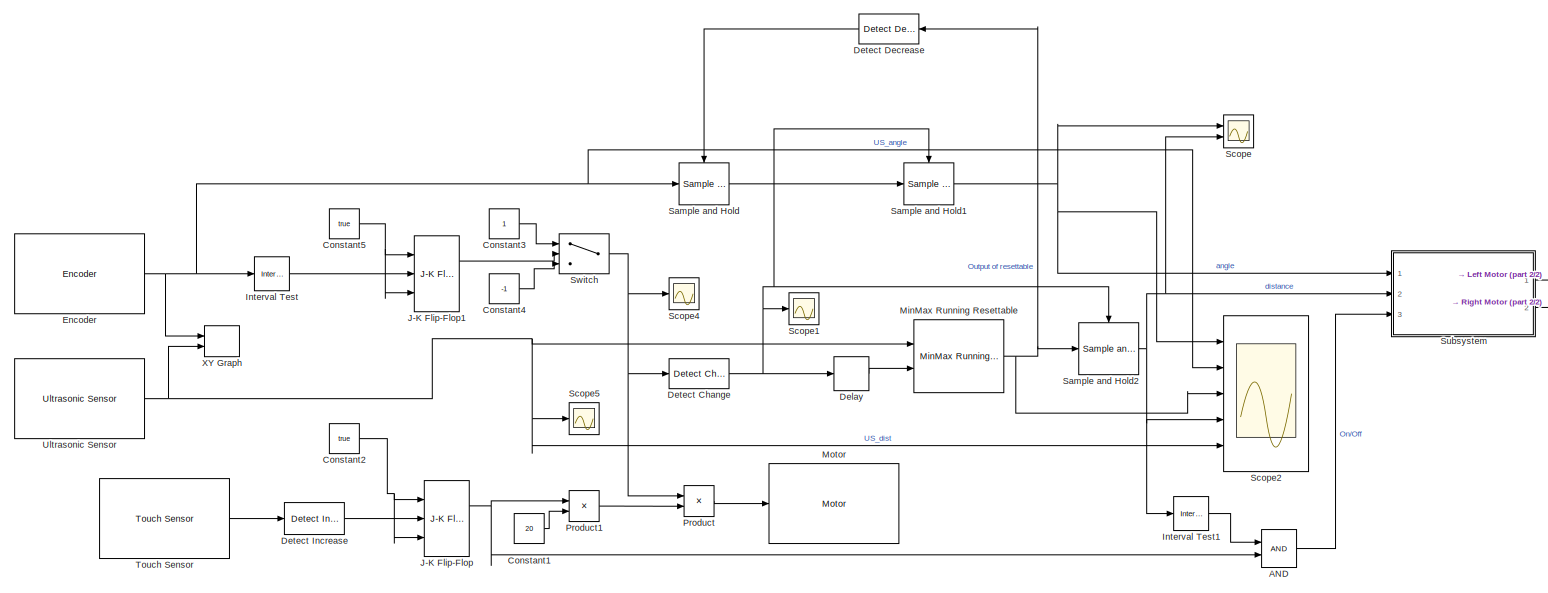
[diagram: root canvas - part 1/2, most of the canvas]
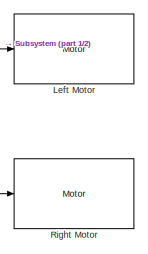
[diagram: root canvas - part 2/2, middle right region]
MODEL slx_2339d71c7e31
KIND model
CONFIG AbsTol = auto
CONFIG EnableMultiTasking = on
CONFIG FixedStep = auto
CONFIG MaxStep = auto
CONFIG MinStep = auto
CONFIG RelTol = 1e-3
CONFIG SampleTimeConstraint = Unconstrained
CONFIG SolverName = FixedStepAuto
CONFIG StartTime = 0.0
CONFIG StopTime = 60
BLOCK [Logic] AND
  AllPortsSameDT = off
  IconShape = distinctive
  OutDataTypeStr = boolean
  Ports = [2, 1]
BLOCK [Constant] Constant1
  Value = 20
BLOCK [Constant] Constant2
  OutDataTypeStr = boolean
  Value = true
BLOCK [Constant] Constant3
BLOCK [Constant] Constant4
  Value = -1
BLOCK [Constant] Constant5
  OutDataTypeStr = boolean
  Value = true
BLOCK [Delay] Delay
  DelayLength = 1
  InputPortMap = u0
  Ports = [1, 1]
BLOCK [Reference] Detect Change  REF=simulink/Logic and Bit
Operations/Detect
Change
  Ports = [1, 1]
  SourceBlock = simulink/Logic and Bit\nOperations/Detect\nChange
  SourceProductBaseCode = SL
  SourceType = Detect Change
BLOCK [Reference] Detect Decrease  REF=simulink/Logic and Bit
Operations/Detect
Decrease
  Ports = [1, 1]
  SourceBlock = simulink/Logic and Bit\nOperations/Detect\nDecrease
  SourceProductBaseCode = SL
  SourceType = Detect Decrease
BLOCK [Reference] Detect Increase  REF=simulink/Logic and Bit
Operations/Detect
Increase
  Ports = [1, 1]
  SourceBlock = simulink/Logic and Bit\nOperations/Detect\nIncrease
  SourceProductBaseCode = SL
  SourceType = Detect Increase
BLOCK [Reference] Encoder  REF=legoev3lib/Encoder
  Ports = [1, 1]
  SourceBlock = legoev3lib/Encoder
  SourceProductBaseCode = LEGOEV3
  SourceType = LEGO MINDSTORMS EV3 Encoder
BLOCK [Reference] Interval Test  REF=simulink/Logic and Bit
Operations/Interval Test
  Ports = [1, 1]
  SourceBlock = simulink/Logic and Bit\nOperations/Interval Test
  SourceProductBaseCode = SL
  SourceType = Interval Test
BLOCK [Reference] Interval Test1  REF=simulink/Logic and Bit
Operations/Interval Test
  Ports = [1, 1]
  SourceBlock = simulink/Logic and Bit\nOperations/Interval Test
  SourceProductBaseCode = SL
  SourceType = Interval Test
BLOCK [Reference] J-K Flip-Flop  REF=simulink_extras/Flip Flops/J-K
Flip-Flop
  Ports = [3, 2]
  SourceBlock = simulink_extras/Flip Flops/J-K\nFlip-Flop
  SourceProductBaseCode = SL
  SourceType = JKFlipFlop
BLOCK [Reference] J-K Flip-Flop1  REF=simulink_extras/Flip Flops/J-K
Flip-Flop
  Ports = [3, 2]
  SourceBlock = simulink_extras/Flip Flops/J-K\nFlip-Flop
  SourceProductBaseCode = SL
  SourceType = JKFlipFlop
BLOCK [Reference] Left Motor  REF=legoev3lib/Motor
  Ports = [1]
  SourceBlock = legoev3lib/Motor
  SourceProductBaseCode = LEGOEV3
  SourceType = LEGO MINDSTORMS EV3 Motor
BLOCK [Reference] MinMax Running Resettable  REF=simulink/Math
Operations/MinMax
Running
Resettable
  Ports = [2, 1]
  SourceBlock = simulink/Math\nOperations/MinMax\nRunning\nResettable
  SourceProductBaseCode = SL
  SourceType = MinMax Running Resettable
BLOCK [Reference] Motor  REF=legoev3lib/Motor
  Ports = [1]
  SourceBlock = legoev3lib/Motor
  SourceProductBaseCode = LEGOEV3
  SourceType = LEGO MINDSTORMS EV3 Motor
BLOCK [Product] Product
  Ports = [2, 1]
BLOCK [Product] Product1
  Ports = [2, 1]
BLOCK [Reference] Right Motor  REF=legoev3lib/Motor
  Ports = [1]
  SourceBlock = legoev3lib/Motor
  SourceProductBaseCode = LEGOEV3
  SourceType = LEGO MINDSTORMS EV3 Motor
BLOCK [Reference] Sample and Hold  REF=dspsigops/Sample
and Hold
  Ports = [1, 1, 0, 1]
  SourceBlock = dspsigops/Sample\nand Hold
  SourceProductBaseCode = DS
  SourceType = Sample and Hold
BLOCK [Reference] Sample and Hold1  REF=dspsigops/Sample
and Hold
  Ports = [1, 1, 0, 1]
  SourceBlock = dspsigops/Sample\nand Hold
  SourceProductBaseCode = DS
  SourceType = Sample and Hold
BLOCK [Reference] Sample and Hold2  REF=dspsigops/Sample
and Hold
  Ports = [1, 1, 0, 1]
  SourceBlock = dspsigops/Sample\nand Hold
  SourceProductBaseCode = DS
  SourceType = Sample and Hold
BLOCK [Scope] Scope
  Floating = off
  NumInputPorts = 2
  Ports = [2]
  ScopeSpecificationString = Simulink.scopes.TimeScopeBlockCfg('CurrentConfiguration', extmgr.ConfigurationSet(extmgr.Configuration('Core','General UI',true),extmgr.Configuration('Core','Source UI',true),extmgr.Configuration('Sources','WiredSimulink',true,'DataLoggingVariableName','ScopeData1'),extmgr.Configuration('Visuals','Time Domain',true),extmgr.Configuration('Tools','Plot Navigation',true),extmgr.Configuration('Tools',...<+40ch>
BLOCK [Scope] Scope1
  Floating = off
  NumInputPorts = 1
  Ports = [1]
  ScopeSpecificationString = Simulink.scopes.TimeScopeBlockCfg('CurrentConfiguration', extmgr.ConfigurationSet(extmgr.Configuration('Core','General UI',true),extmgr.Configuration('Core','Source UI',true),extmgr.Configuration('Sources','WiredSimulink',true,'DataLoggingVariableName','ScopeData1'),extmgr.Configuration('Visuals','Time Domain',true,'SerializedDisplays',{struct('MinYLimReal','-0.125','MaxYLimReal','1.125','YLabelRe...<+1409ch>
BLOCK [Scope] Scope2
  Floating = off
  NumInputPorts = 5
  Ports = [5]
  ScopeSpecificationString = Simulink.scopes.TimeScopeBlockCfg('CurrentConfiguration', extmgr.ConfigurationSet(extmgr.Configuration('Core','General UI',true),extmgr.Configuration('Core','Source UI',true),extmgr.Configuration('Sources','WiredSimulink',true,'DataLoggingVariableName','ScopeData2'),extmgr.Configuration('Visuals','Time Domain',true,'SerializedDisplays',{struct('MinYLimReal','-106.125','MaxYLimReal','295.125','YLab...<+1444ch>
BLOCK [Scope] Scope4
  Floating = off
  NumInputPorts = 1
  Ports = [1]
  ScopeSpecificationString = Simulink.scopes.TimeScopeBlockCfg('CurrentConfiguration', extmgr.ConfigurationSet(extmgr.Configuration('Core','General UI',true),extmgr.Configuration('Core','Source UI',true),extmgr.Configuration('Sources','WiredSimulink',true,'DataLoggingVariableName','ScopeData4'),extmgr.Configuration('Visuals','Time Domain',true,'SerializedDisplays',{struct('MinYLimReal','-1.22028','MaxYLimReal','1.25','YLabelR...<+1402ch>
BLOCK [Scope] Scope5
  Floating = off
  NumInputPorts = 1
  Ports = [1]
  ScopeSpecificationString = Simulink.scopes.TimeScopeBlockCfg('CurrentConfiguration', extmgr.ConfigurationSet(extmgr.Configuration('Core','General UI',true),extmgr.Configuration('Core','Source UI',true),extmgr.Configuration('Sources','WiredSimulink',true,'DataLoggingVariableName','ScopeData4'),extmgr.Configuration('Visuals','Time Domain',true,'SerializedDisplays',{struct('MinYLimReal','-10.375','MaxYLimReal','163.375','YLabe...<+1413ch>
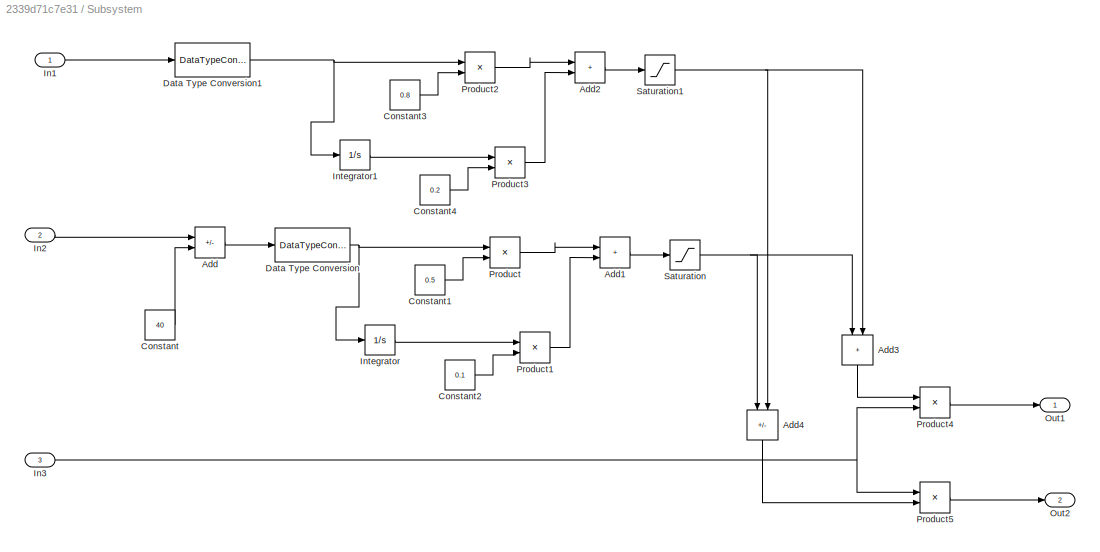
BLOCK [SubSystem] Subsystem
  Ports = [3, 2]
  RequestExecContextInheritance = off
BLOCK [Sum] Subsystem/Add
  IconShape = rectangular
  Inputs = +-
  Ports = [2, 1]
BLOCK [Sum] Subsystem/Add1
  IconShape = rectangular
  Ports = [2, 1]
BLOCK [Sum] Subsystem/Add2
  IconShape = rectangular
  Ports = [2, 1]
BLOCK [Sum] Subsystem/Add3
  IconShape = rectangular
  NameLocation = left
  Ports = [2, 1]
BLOCK [Sum] Subsystem/Add4
  IconShape = rectangular
  Inputs = +-
  NameLocation = left
  Ports = [2, 1]
BLOCK [Constant] Subsystem/Constant
  Value = 40
BLOCK [Constant] Subsystem/Constant1
  Value = 0.5
BLOCK [Constant] Subsystem/Constant2
  Value = 0.1
BLOCK [Constant] Subsystem/Constant3
  Value = 0.8
BLOCK [Constant] Subsystem/Constant4
  Value = 0.2
BLOCK [DataTypeConversion] Subsystem/Data Type Conversion
  OutDataTypeStr = double
  RndMeth = Floor
  SaturateOnIntegerOverflow = off
BLOCK [DataTypeConversion] Subsystem/Data Type Conversion1
  OutDataTypeStr = double
  RndMeth = Floor
  SaturateOnIntegerOverflow = off
BLOCK [Inport] Subsystem/In1
BLOCK [Inport] Subsystem/In2
  Port = 2
BLOCK [Inport] Subsystem/In3
  Port = 3
BLOCK [Integrator] Subsystem/Integrator
  Ports = [1, 1]
BLOCK [Integrator] Subsystem/Integrator1
  Ports = [1, 1]
BLOCK [Outport] Subsystem/Out1
BLOCK [Outport] Subsystem/Out2
  Port = 2
BLOCK [Product] Subsystem/Product
  Ports = [2, 1]
BLOCK [Product] Subsystem/Product1
  Ports = [2, 1]
BLOCK [Product] Subsystem/Product2
  Ports = [2, 1]
BLOCK [Product] Subsystem/Product3
  Ports = [2, 1]
BLOCK [Product] Subsystem/Product4
  Ports = [2, 1]
BLOCK [Product] Subsystem/Product5
  Ports = [2, 1]
BLOCK [Saturate] Subsystem/Saturation
  LowerLimit = -50
  UpperLimit = 50
BLOCK [Saturate] Subsystem/Saturation1
  LowerLimit = -50
  UpperLimit = 50
BLOCK [Switch] Switch
  Criteria = u2 > Threshold
  InputSameDT = off
  SaturateOnIntegerOverflow = off
BLOCK [Reference] Touch Sensor  REF=legoev3lib/Touch Sensor
  Ports = [0, 1]
  SourceBlock = legoev3lib/Touch Sensor
  SourceProductBaseCode = LEGOEV3
  SourceType = LEGO MINDSTORMS EV3 Touch Sensor
BLOCK [Reference] Ultrasonic Sensor  REF=legoev3lib/Ultrasonic Sensor
  Ports = [0, 1]
  SourceBlock = legoev3lib/Ultrasonic Sensor
  SourceProductBaseCode = LEGOEV3
  SourceType = LEGO MINDSTORMS EV3 Ultrasonic Sensor
BLOCK [Record] XY Graph
  CompatibilityTag = XY
  FileSettingsInternal = {"entries":[{"content":{"excelSettings":{"content":{},"type":"Streamout.ExcelSettings"}},"type":"Streamout.FileSettingStorage","uuid":"50f50f7a-dfcd-414a-8b4a-e8b5aee4ef2a"}],"packageUris":["http://schema.mathworks.com/mf0/streamout_blocks/R2020a"],"version":"1.0"}
  Layout = [1 1]
  Ports = [2]
  SignalsInternal = {"entries":[{"content":{"signals":[{"content":{"blockPath":["exercise_33/XY Graph"],"channel":[],"dimensions":[1],"domain":"exercise_33/XY Graph","lineColor":"#a2142f","plots":[1],"port":1,"sid":[],"signalID":9,"signalName":"US_angle"},"type":"RecordBlkView.Signal","uuid":"c8cc9e7f-7cd9-489e-ba8d-e3bfc22c7bb4"},{"content":{"blockPath":["exercise_33/XY Graph"],"channel":[],"dimensions":[1],"domain"...<+367ch>
  VisualizationBindings = {"xyplotplugin":{"info":[{"series":[{"bindingParametersList":[{"parameter":"X-Axis","signalID":9,"signalName":"US_angle"},{"parameter":"Y-Axis","signalID":12,"signalName":"US_dist"}],"seriesID":57766}],"subplotID":1}]}}
LINE AND:1 -> Subsystem:3
LINE Constant1:1 -> Product1:2
NET Constant2:1 -> J-K Flip-Flop:1, J-K Flip-Flop:3
LINE Constant3:1 -> Switch:1
LINE Constant4:1 -> Switch:3
NET Constant5:1 -> J-K Flip-Flop1:1, J-K Flip-Flop1:3
LINE Delay:1 -> MinMax Running Resettable:2
NET Detect Change:1 -> Delay:1, Sample and Hold1:trigger, Sample and Hold2:trigger, Scope1:1
LINE Detect Decrease:1 -> Sample and Hold:trigger
LINE Detect Increase:1 -> J-K Flip-Flop:2
NET Encoder:1 -> Interval Test:1, Sample and Hold:1, Scope2:2, XY Graph:1
LINE Interval Test1:1 -> AND:1
LINE Interval Test:1 -> J-K Flip-Flop1:2
LINE J-K Flip-Flop1:1 -> Switch:2
NET J-K Flip-Flop:1 -> AND:2, Product1:1
NET MinMax Running Resettable:1 -> Detect Decrease:1, Sample and Hold2:1, Scope2:3
LINE Product1:1 -> Product:2
LINE Product:1 -> Motor:1
NET Sample and Hold1:1 -> Scope2:1, Scope:1, Subsystem:1
NET Sample and Hold2:1 -> Interval Test1:1, Scope2:4, Scope:2, Subsystem:2
LINE Sample and Hold:1 -> Sample and Hold1:1
LINE Subsystem/Add1:1 -> Subsystem/Saturation:1
LINE Subsystem/Add2:1 -> Subsystem/Saturation1:1
LINE Subsystem/Add3:1 -> Subsystem/Product4:1
LINE Subsystem/Add4:1 -> Subsystem/Product5:2
LINE Subsystem/Add:1 -> Subsystem/Data Type Conversion:1
LINE Subsystem/Constant1:1 -> Subsystem/Product:2
LINE Subsystem/Constant2:1 -> Subsystem/Product1:2
LINE Subsystem/Constant3:1 -> Subsystem/Product2:2
LINE Subsystem/Constant4:1 -> Subsystem/Product3:2
LINE Subsystem/Constant:1 -> Subsystem/Add:2
NET Subsystem/Data Type Conversion1:1 -> Subsystem/Integrator1:1, Subsystem/Product2:1
NET Subsystem/Data Type Conversion:1 -> Subsystem/Integrator:1, Subsystem/Product:1
LINE Subsystem/In1:1 -> Subsystem/Data Type Conversion1:1
LINE Subsystem/In2:1 -> Subsystem/Add:1
NET Subsystem/In3:1 -> Subsystem/Product4:2, Subsystem/Product5:1
LINE Subsystem/Integrator1:1 -> Subsystem/Product3:1
LINE Subsystem/Integrator:1 -> Subsystem/Product1:1
LINE Subsystem/Product1:1 -> Subsystem/Add1:2
LINE Subsystem/Product2:1 -> Subsystem/Add2:1
LINE Subsystem/Product3:1 -> Subsystem/Add2:2
LINE Subsystem/Product4:1 -> Subsystem/Out1:1
LINE Subsystem/Product5:1 -> Subsystem/Out2:1
LINE Subsystem/Product:1 -> Subsystem/Add1:1
NET Subsystem/Saturation1:1 -> Subsystem/Add3:2, Subsystem/Add4:2
NET Subsystem/Saturation:1 -> Subsystem/Add3:1, Subsystem/Add4:1
LINE Subsystem:1 -> Left Motor:1
LINE Subsystem:2 -> Right Motor:1
NET Switch:1 -> Detect Change:1, Product:1, Scope4:1
LINE Touch Sensor:1 -> Detect Increase:1
NET Ultrasonic Sensor:1 -> MinMax Running Resettable:1, Scope2:5, Scope5:1, XY Graph:2
note: NET lines group one-source signal fan-out (src -> all destinations, sorted); 1:1 wires keep LINE
